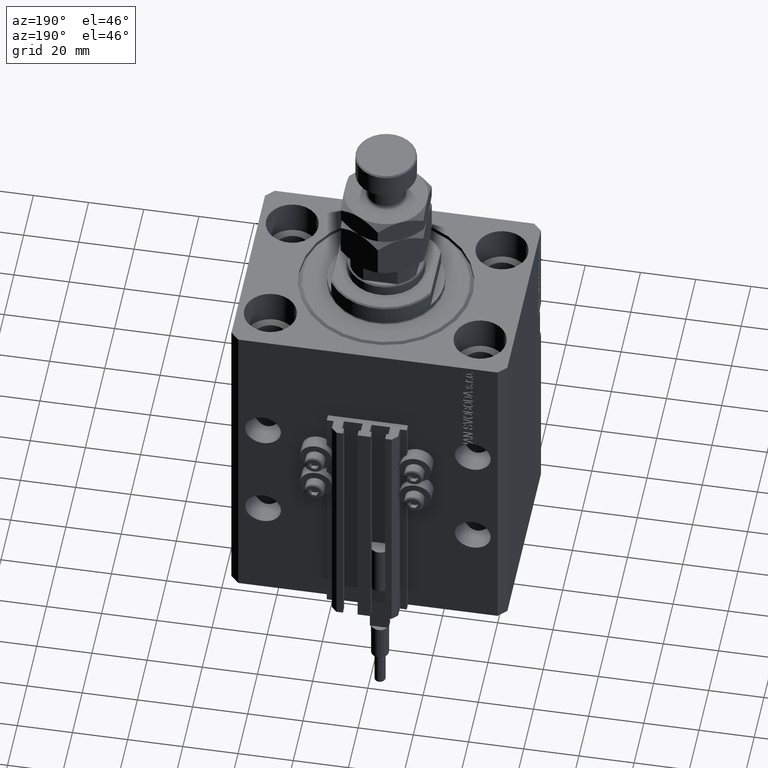
[diagram: clean part render]
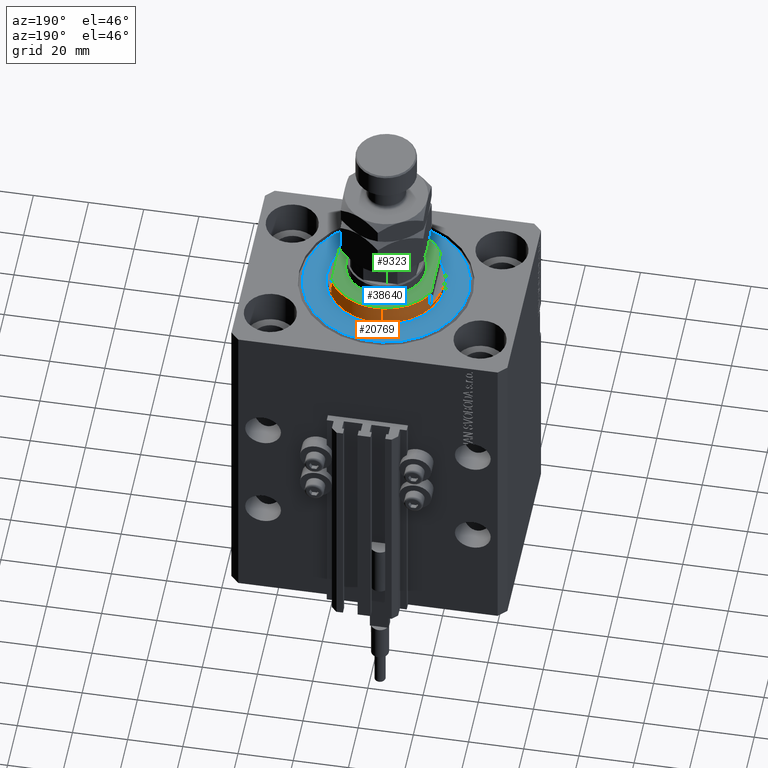
[diagram: same view with three faces highlighted in distinct colors, each labeled with its STEP entity id]
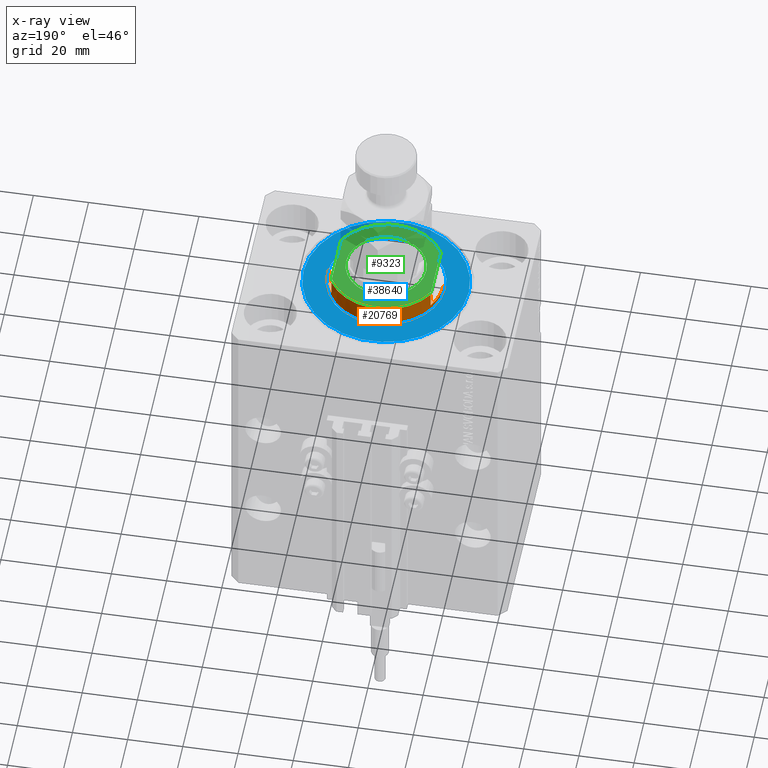
[diagram: x-ray of the same camera — body ghosted, the three highlighted faces saturated]
A machine part, auxiliary view with three faces highlighted in distinct colors.
The next image is the same camera in x-ray (body ghosted, the three faces saturated) — at least one of them is partly hidden behind the body in this view.
Their STEP definitions:

[orange] entity #20769 — the highlighted cylindrical surface (partial cylindrical patch) has radius 21 mm, axis along (0, 0, -1).
#53 = DIRECTION ( 'NONE',  ( -0.000000000000000000, -0.000000000000000000, 1.000000000000000000 ) ) ;
#1909 = DIRECTION ( 'NONE',  ( -1.000000000000000000, 0.000000000000000000, 0.000000000000000000 ) ) ;
#3104 = EDGE_CURVE ( 'NONE', #43612, #17896, #31990, .T. ) ;
#3318 = CARTESIAN_POINT ( 'NONE',  ( 0.000000000000000000, 0.000000000000000000, -8.000000000000000000 ) ) ;
#3910 = ORIENTED_EDGE ( 'NONE', *, *, #23578, .T. ) ;
#4410 = VECTOR ( 'NONE', #33430, 1000.000000000000000 ) ;
#5252 = DIRECTION ( 'NONE',  ( 0.000000000000000000, 0.000000000000000000, -1.000000000000000000 ) ) ;
#5343 = ORIENTED_EDGE ( 'NONE', *, *, #31451, .T. ) ;
#5585 = LINE ( 'NONE', #32499, #17662 ) ;
#7744 = ORIENTED_EDGE ( 'NONE', *, *, #10905, .F. ) ;
#9880 = AXIS2_PLACEMENT_3D ( 'NONE', #35795, #48105, #32458 ) ;
#10171 = CIRCLE ( 'NONE', #18361, 21.00000000000000000 ) ;
#10905 = EDGE_CURVE ( 'NONE', #43612, #11576, #27836, .T. ) ;
#11319 = CARTESIAN_POINT ( 'NONE',  ( -18.00000000000000000, 10.81665382639197048, -7.500000000000016875 ) ) ;
#11576 = VERTEX_POINT ( 'NONE', #36178 ) ;
#14193 = AXIS2_PLACEMENT_3D ( 'NONE', #31908, #20377, #35509 ) ;
#14346 = DIRECTION ( 'NONE',  ( -0.000000000000000000, -0.000000000000000000, 1.000000000000000000 ) ) ;
#15152 = LINE ( 'NONE', #42601, #39909 ) ;
#15206 = VERTEX_POINT ( 'NONE', #16741 ) ;
#16575 = CIRCLE ( 'NONE', #35395, 21.00000000000000000 ) ;
#16741 = CARTESIAN_POINT ( 'NONE',  ( -21.00000000000000000, 2.571758278209441661E-15, -2.000000000000000000 ) ) ;
#17144 = EDGE_CURVE ( 'NONE', #35112, #47765, #16575, .T. ) ;
#17662 = VECTOR ( 'NONE', #29141, 1000.000000000000000 ) ;
#17779 = ORIENTED_EDGE ( 'NONE', *, *, #47212, .F. ) ;
#17785 = CARTESIAN_POINT ( 'NONE',  ( -18.00000000000000000, 10.81665382639197048, -8.000000000000000000 ) ) ;
#17896 = VERTEX_POINT ( 'NONE', #11319 ) ;
#18361 = AXIS2_PLACEMENT_3D ( 'NONE', #36515, #5252, #1909 ) ;
#19055 = VECTOR ( 'NONE', #24251, 1000.000000000000000 ) ;
#19784 = ORIENTED_EDGE ( 'NONE', *, *, #17144, .T. ) ;
#20377 = DIRECTION ( 'NONE',  ( 0.000000000000000000, 0.000000000000000000, -1.000000000000000000 ) ) ;
#20769 = ADVANCED_FACE ( 'NONE', ( #33832 ), #38180, .T. ) ;
#21375 = LINE ( 'NONE', #17785, #4410 ) ;
#21782 = DIRECTION ( 'NONE',  ( -0.000000000000000000, -0.000000000000000000, -1.000000000000000000 ) ) ;
#22932 = CARTESIAN_POINT ( 'NONE',  ( -21.00000000000000000, 2.571758278209441661E-15, -0.5000000000000004441 ) ) ;
#23465 = EDGE_CURVE ( 'NONE', #11576, #32073, #44522, .T. ) ;
#23578 = EDGE_CURVE ( 'NONE', #17896, #47528, #21375, .T. ) ;
#23651 = CARTESIAN_POINT ( 'NONE',  ( 21.00000000000000000, 0.000000000000000000, -0.5000000000000004441 ) ) ;
#24251 = DIRECTION ( 'NONE',  ( -0.000000000000000000, -0.000000000000000000, 1.000000000000000000 ) ) ;
#25406 = EDGE_CURVE ( 'NONE', #15206, #47528, #10171, .T. ) ;
#27836 = LINE ( 'NONE', #39910, #19055 ) ;
#29141 = DIRECTION ( 'NONE',  ( -0.000000000000000000, -0.000000000000000000, 1.000000000000000000 ) ) ;
#30457 = DIRECTION ( 'NONE',  ( 1.000000000000000000, 0.000000000000000000, 0.000000000000000000 ) ) ;
#31451 = EDGE_CURVE ( 'NONE', #15206, #35112, #15152, .T. ) ;
#31908 = CARTESIAN_POINT ( 'NONE',  ( 0.000000000000000000, 0.000000000000000000, -2.000000000000000000 ) ) ;
#31990 = CIRCLE ( 'NONE', #9880, 21.00000000000000000 ) ;
#32021 = EDGE_LOOP ( 'NONE', ( #39731, #5343, #19784, #17779, #47218, #7744, #37498, #3910 ) ) ;
#32073 = VERTEX_POINT ( 'NONE', #43435 ) ;
#32458 = DIRECTION ( 'NONE',  ( -1.000000000000000000, 0.000000000000000000, 0.000000000000000000 ) ) ;
#32499 = CARTESIAN_POINT ( 'NONE',  ( 21.00000000000000000, 0.000000000000000000, -8.000000000000000000 ) ) ;
#33430 = DIRECTION ( 'NONE',  ( -0.000000000000000000, -0.000000000000000000, 1.000000000000000000 ) ) ;
#33832 = FACE_OUTER_BOUND ( 'NONE', #32021, .T. ) ;
#35112 = VERTEX_POINT ( 'NONE', #22932 ) ;
#35395 = AXIS2_PLACEMENT_3D ( 'NONE', #42281, #21782, #30457 ) ;
#35509 = DIRECTION ( 'NONE',  ( -1.000000000000000000, 0.000000000000000000, 0.000000000000000000 ) ) ;
#35795 = CARTESIAN_POINT ( 'NONE',  ( 0.000000000000000000, 0.000000000000000000, -7.500000000000016875 ) ) ;
#36178 = CARTESIAN_POINT ( 'NONE',  ( 18.00000000000000000, 10.81665382639197048, -2.000000000000000000 ) ) ;
#36515 = CARTESIAN_POINT ( 'NONE',  ( 0.000000000000000000, 0.000000000000000000, -2.000000000000000000 ) ) ;
#37498 = ORIENTED_EDGE ( 'NONE', *, *, #3104, .T. ) ;
#37871 = AXIS2_PLACEMENT_3D ( 'NONE', #3318, #14346, #49223 ) ;
#38180 = CYLINDRICAL_SURFACE ( 'NONE', #37871, 21.00000000000000000 ) ;
#39627 = CARTESIAN_POINT ( 'NONE',  ( -18.00000000000000000, 10.81665382639197048, -2.000000000000000000 ) ) ;
#39731 = ORIENTED_EDGE ( 'NONE', *, *, #25406, .F. ) ;
#39909 = VECTOR ( 'NONE', #53, 1000.000000000000000 ) ;
#39910 = CARTESIAN_POINT ( 'NONE',  ( 18.00000000000000000, 10.81665382639197048, -8.000000000000000000 ) ) ;
#42281 = CARTESIAN_POINT ( 'NONE',  ( 0.000000000000000000, 0.000000000000000000, -0.5000000000000004441 ) ) ;
#42601 = CARTESIAN_POINT ( 'NONE',  ( -21.00000000000000000, 2.571758278209441661E-15, -8.000000000000000000 ) ) ;
#43435 = CARTESIAN_POINT ( 'NONE',  ( 21.00000000000000000, 0.000000000000000000, -2.000000000000000000 ) ) ;
#43612 = VERTEX_POINT ( 'NONE', #50420 ) ;
#44522 = CIRCLE ( 'NONE', #14193, 21.00000000000000000 ) ;
#47212 = EDGE_CURVE ( 'NONE', #32073, #47765, #5585, .T. ) ;
#47218 = ORIENTED_EDGE ( 'NONE', *, *, #23465, .F. ) ;
#47528 = VERTEX_POINT ( 'NONE', #39627 ) ;
#47765 = VERTEX_POINT ( 'NONE', #23651 ) ;
#48105 = DIRECTION ( 'NONE',  ( 0.000000000000000000, 0.000000000000000000, 1.000000000000000000 ) ) ;
#49223 = DIRECTION ( 'NONE',  ( 1.000000000000000000, 0.000000000000000000, 0.000000000000000000 ) ) ;
#50420 = CARTESIAN_POINT ( 'NONE',  ( 18.00000000000000000, 10.81665382639197048, -7.500000000000016875 ) ) ;

[blue] entity #38640 — the highlighted planar face has unit normal (0, 0, -1).
#1395 = DIRECTION ( 'NONE',  ( -0.000000000000000000, -0.000000000000000000, -1.000000000000000000 ) ) ;
#1760 = EDGE_CURVE ( 'NONE', #7758, #32445, #5805, .T. ) ;
#4413 = CIRCLE ( 'NONE', #17492, 29.99999999999999289 ) ;
#5226 = CARTESIAN_POINT ( 'NONE',  ( 0.000000000000000000, 0.000000000000000000, 0.000000000000000000 ) ) ;
#5351 = DIRECTION ( 'NONE',  ( 0.000000000000000000, 0.000000000000000000, 1.000000000000000000 ) ) ;
#5805 = CIRCLE ( 'NONE', #21339, 29.99999999999999289 ) ;
#6863 = FACE_BOUND ( 'NONE', #9924, .T. ) ;
#7389 = CARTESIAN_POINT ( 'NONE',  ( 29.99999999999999289, 0.000000000000000000, 0.000000000000000000 ) ) ;
#7758 = VERTEX_POINT ( 'NONE', #14508 ) ;
#8376 = CIRCLE ( 'NONE', #17386, 21.50000000000000000 ) ;
#9924 = EDGE_LOOP ( 'NONE', ( #22350, #15804 ) ) ;
#9939 = FACE_OUTER_BOUND ( 'NONE', #16692, .T. ) ;
#10588 = AXIS2_PLACEMENT_3D ( 'NONE', #14297, #22490, #34032 ) ;
#12621 = CIRCLE ( 'NONE', #42899, 21.50000000000000000 ) ;
#13277 = CARTESIAN_POINT ( 'NONE',  ( 0.000000000000000000, 0.000000000000000000, 0.000000000000000000 ) ) ;
#14297 = CARTESIAN_POINT ( 'NONE',  ( 0.000000000000000000, 0.000000000000000000, 0.000000000000000000 ) ) ;
#14508 = CARTESIAN_POINT ( 'NONE',  ( -29.99999999999999289, 3.765788907378110539E-15, 0.000000000000000000 ) ) ;
#15804 = ORIENTED_EDGE ( 'NONE', *, *, #42667, .T. ) ;
#16692 = EDGE_LOOP ( 'NONE', ( #25116, #36489 ) ) ;
#17382 = EDGE_CURVE ( 'NONE', #20753, #50101, #8376, .T. ) ;
#17386 = AXIS2_PLACEMENT_3D ( 'NONE', #13277, #5351, #25302 ) ;
#17492 = AXIS2_PLACEMENT_3D ( 'NONE', #5226, #1395, #48285 ) ;
#20399 = EDGE_CURVE ( 'NONE', #32445, #7758, #4413, .T. ) ;
#20753 = VERTEX_POINT ( 'NONE', #49473 ) ;
#21339 = AXIS2_PLACEMENT_3D ( 'NONE', #33129, #48773, #45428 ) ;
#22350 = ORIENTED_EDGE ( 'NONE', *, *, #17382, .T. ) ;
#22490 = DIRECTION ( 'NONE',  ( 0.000000000000000000, 0.000000000000000000, 1.000000000000000000 ) ) ;
#25116 = ORIENTED_EDGE ( 'NONE', *, *, #20399, .T. ) ;
#25302 = DIRECTION ( 'NONE',  ( 1.000000000000000000, 0.000000000000000000, 0.000000000000000000 ) ) ;
#26115 = DIRECTION ( 'NONE',  ( 0.000000000000000000, 0.000000000000000000, 1.000000000000000000 ) ) ;
#32445 = VERTEX_POINT ( 'NONE', #7389 ) ;
#33129 = CARTESIAN_POINT ( 'NONE',  ( 0.000000000000000000, 0.000000000000000000, 0.000000000000000000 ) ) ;
#34032 = DIRECTION ( 'NONE',  ( 1.000000000000000000, 0.000000000000000000, -0.000000000000000000 ) ) ;
#36489 = ORIENTED_EDGE ( 'NONE', *, *, #1760, .T. ) ;
#38173 = CARTESIAN_POINT ( 'NONE',  ( 0.000000000000000000, 0.000000000000000000, 0.000000000000000000 ) ) ;
#38640 = ADVANCED_FACE ( 'NONE', ( #6863, #9939 ), #41485, .F. ) ;
#40800 = CARTESIAN_POINT ( 'NONE',  ( -21.50000000000000000, 2.632990618166809630E-15, -2.168404344971008868E-16 ) ) ;
#41485 = PLANE ( 'NONE',  #10588 ) ;
#41774 = DIRECTION ( 'NONE',  ( 1.000000000000000000, 0.000000000000000000, 0.000000000000000000 ) ) ;
#42667 = EDGE_CURVE ( 'NONE', #50101, #20753, #12621, .T. ) ;
#42899 = AXIS2_PLACEMENT_3D ( 'NONE', #38173, #26115, #41774 ) ;
#45428 = DIRECTION ( 'NONE',  ( 1.000000000000000000, 0.000000000000000000, 0.000000000000000000 ) ) ;
#48285 = DIRECTION ( 'NONE',  ( 1.000000000000000000, 0.000000000000000000, 0.000000000000000000 ) ) ;
#48773 = DIRECTION ( 'NONE',  ( -0.000000000000000000, -0.000000000000000000, -1.000000000000000000 ) ) ;
#49473 = CARTESIAN_POINT ( 'NONE',  ( 21.50000000000000000, 0.000000000000000000, -2.168404344971008868E-16 ) ) ;
#50101 = VERTEX_POINT ( 'NONE', #40800 ) ;

[green] entity #9323 — the highlighted planar face has unit normal (0, 0, 1).
#484 = DIRECTION ( 'NONE',  ( -1.000000000000000000, 0.000000000000000000, 0.000000000000000000 ) ) ;
#1871 = FACE_BOUND ( 'NONE', #45087, .T. ) ;
#4753 = VERTEX_POINT ( 'NONE', #41877 ) ;
#5549 = CARTESIAN_POINT ( 'NONE',  ( 18.00000000000000000, -9.810708435174332109, -8.000000000000000000 ) ) ;
#7536 = AXIS2_PLACEMENT_3D ( 'NONE', #24426, #17479, #9035 ) ;
#8150 = CARTESIAN_POINT ( 'NONE',  ( 0.000000000000000000, 0.000000000000000000, -8.000000000000000000 ) ) ;
#8190 = ORIENTED_EDGE ( 'NONE', *, *, #9469, .T. ) ;
#8820 = VECTOR ( 'NONE', #42420, 1000.000000000000000 ) ;
#9035 = DIRECTION ( 'NONE',  ( -1.000000000000000000, 0.000000000000000000, -0.000000000000000000 ) ) ;
#9323 = ADVANCED_FACE ( 'NONE', ( #1871, #25174 ), #32626, .T. ) ;
#9469 = EDGE_CURVE ( 'NONE', #21181, #4753, #24773, .T. ) ;
#14372 = CIRCLE ( 'NONE', #46331, 14.49999999999999822 ) ;
#15983 = LINE ( 'NONE', #27524, #8820 ) ;
#16099 = AXIS2_PLACEMENT_3D ( 'NONE', #39251, #43104, #23596 ) ;
#16240 = AXIS2_PLACEMENT_3D ( 'NONE', #31564, #39270, #23855 ) ;
#17130 = DIRECTION ( 'NONE',  ( 0.000000000000000000, -1.000000000000000000, -0.000000000000000000 ) ) ;
#17479 = DIRECTION ( 'NONE',  ( 0.000000000000000000, 0.000000000000000000, -1.000000000000000000 ) ) ;
#17628 = LINE ( 'NONE', #21232, #27219 ) ;
#18426 = EDGE_CURVE ( 'NONE', #21177, #21181, #17628, .T. ) ;
#19993 = DIRECTION ( 'NONE',  ( -1.000000000000000000, 0.000000000000000000, 0.000000000000000000 ) ) ;
#20923 = CARTESIAN_POINT ( 'NONE',  ( -14.49999999999999822, 0.000000000000000000, -8.000000000000000000 ) ) ;
#21177 = VERTEX_POINT ( 'NONE', #32708 ) ;
#21181 = VERTEX_POINT ( 'NONE', #5549 ) ;
#21232 = CARTESIAN_POINT ( 'NONE',  ( 18.00000000000000000, -41.24318125460256113, -8.000000000000000000 ) ) ;
#22779 = CIRCLE ( 'NONE', #16240, 14.49999999999999822 ) ;
#23596 = DIRECTION ( 'NONE',  ( -1.000000000000000000, 0.000000000000000000, 0.000000000000000000 ) ) ;
#23855 = DIRECTION ( 'NONE',  ( -1.000000000000000000, 0.000000000000000000, 0.000000000000000000 ) ) ;
#24426 = CARTESIAN_POINT ( 'NONE',  ( 0.000000000000000000, 0.000000000000000000, -8.000000000000000000 ) ) ;
#24590 = CARTESIAN_POINT ( 'NONE',  ( 0.000000000000000000, 0.000000000000000000, -8.000000000000000000 ) ) ;
#24773 = CIRCLE ( 'NONE', #37868, 20.50000000000001776 ) ;
#25174 = FACE_OUTER_BOUND ( 'NONE', #46812, .T. ) ;
#27219 = VECTOR ( 'NONE', #17130, 1000.000000000000000 ) ;
#27524 = CARTESIAN_POINT ( 'NONE',  ( -18.00000000000000000, -41.24318125460256113, -8.000000000000000000 ) ) ;
#28304 = CARTESIAN_POINT ( 'NONE',  ( -18.00000000000000000, 9.810708435174332109, -8.000000000000000000 ) ) ;
#28475 = VERTEX_POINT ( 'NONE', #42268 ) ;
#28564 = EDGE_CURVE ( 'NONE', #43639, #28475, #14372, .T. ) ;
#30380 = EDGE_CURVE ( 'NONE', #45684, #21177, #50504, .T. ) ;
#30451 = ORIENTED_EDGE ( 'NONE', *, *, #32007, .F. ) ;
#31564 = CARTESIAN_POINT ( 'NONE',  ( 0.000000000000000000, 0.000000000000000000, -8.000000000000000000 ) ) ;
#32007 = EDGE_CURVE ( 'NONE', #45684, #4753, #15983, .T. ) ;
#32248 = ORIENTED_EDGE ( 'NONE', *, *, #18426, .T. ) ;
#32626 = PLANE ( 'NONE',  #7536 ) ;
#32708 = CARTESIAN_POINT ( 'NONE',  ( 18.00000000000000000, 9.810708435174332109, -8.000000000000000000 ) ) ;
#34324 = ORIENTED_EDGE ( 'NONE', *, *, #28564, .T. ) ;
#35586 = DIRECTION ( 'NONE',  ( -0.000000000000000000, -0.000000000000000000, 1.000000000000000000 ) ) ;
#36785 = EDGE_CURVE ( 'NONE', #28475, #43639, #22779, .T. ) ;
#37868 = AXIS2_PLACEMENT_3D ( 'NONE', #24590, #47674, #19993 ) ;
#38122 = ORIENTED_EDGE ( 'NONE', *, *, #30380, .T. ) ;
#39251 = CARTESIAN_POINT ( 'NONE',  ( 0.000000000000000000, 0.000000000000000000, -8.000000000000000000 ) ) ;
#39270 = DIRECTION ( 'NONE',  ( -0.000000000000000000, -0.000000000000000000, 1.000000000000000000 ) ) ;
#41877 = CARTESIAN_POINT ( 'NONE',  ( -18.00000000000000000, -9.810708435174332109, -8.000000000000000000 ) ) ;
#42268 = CARTESIAN_POINT ( 'NONE',  ( 14.49999999999999822, 1.775737858763662015E-15, -8.000000000000000000 ) ) ;
#42420 = DIRECTION ( 'NONE',  ( -0.000000000000000000, -1.000000000000000000, -0.000000000000000000 ) ) ;
#43104 = DIRECTION ( 'NONE',  ( 0.000000000000000000, 0.000000000000000000, -1.000000000000000000 ) ) ;
#43639 = VERTEX_POINT ( 'NONE', #20923 ) ;
#44145 = ORIENTED_EDGE ( 'NONE', *, *, #36785, .T. ) ;
#45087 = EDGE_LOOP ( 'NONE', ( #34324, #44145 ) ) ;
#45684 = VERTEX_POINT ( 'NONE', #28304 ) ;
#46331 = AXIS2_PLACEMENT_3D ( 'NONE', #8150, #35586, #484 ) ;
#46812 = EDGE_LOOP ( 'NONE', ( #38122, #32248, #8190, #30451 ) ) ;
#47674 = DIRECTION ( 'NONE',  ( 0.000000000000000000, 0.000000000000000000, -1.000000000000000000 ) ) ;
#50504 = CIRCLE ( 'NONE', #16099, 20.50000000000001776 ) ;